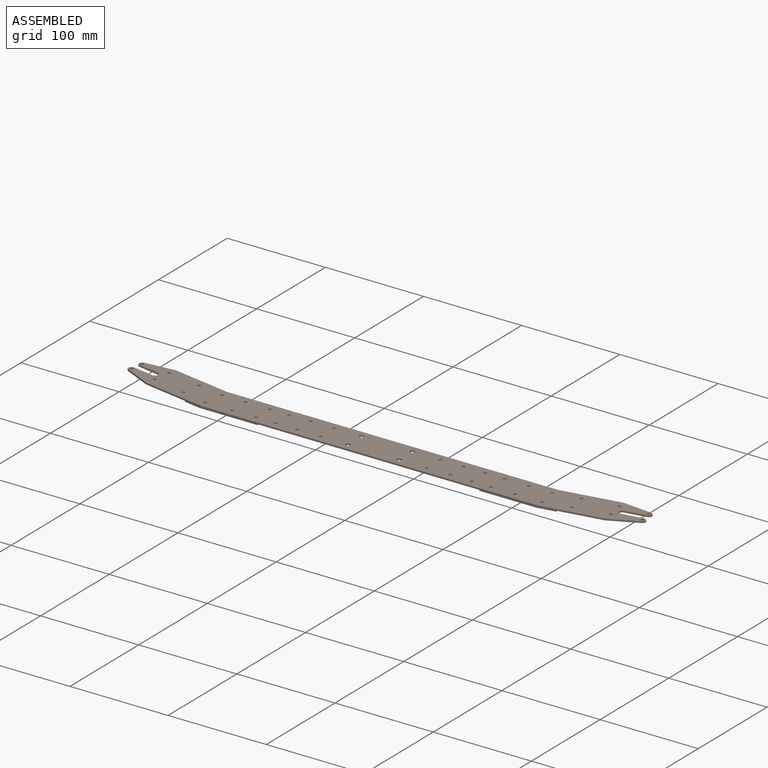
[diagram: assembled view]
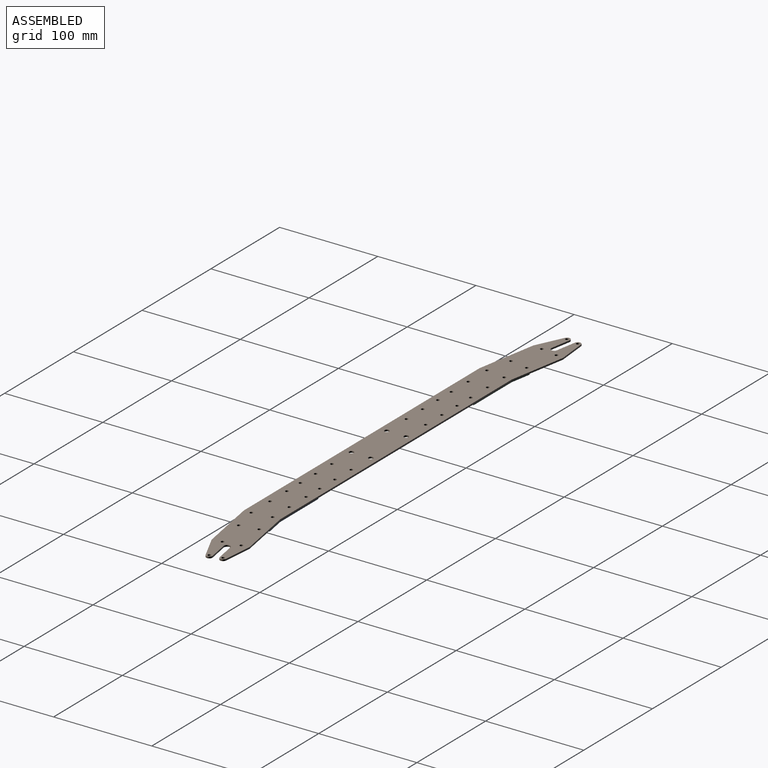
[diagram: assembled view, second angle]
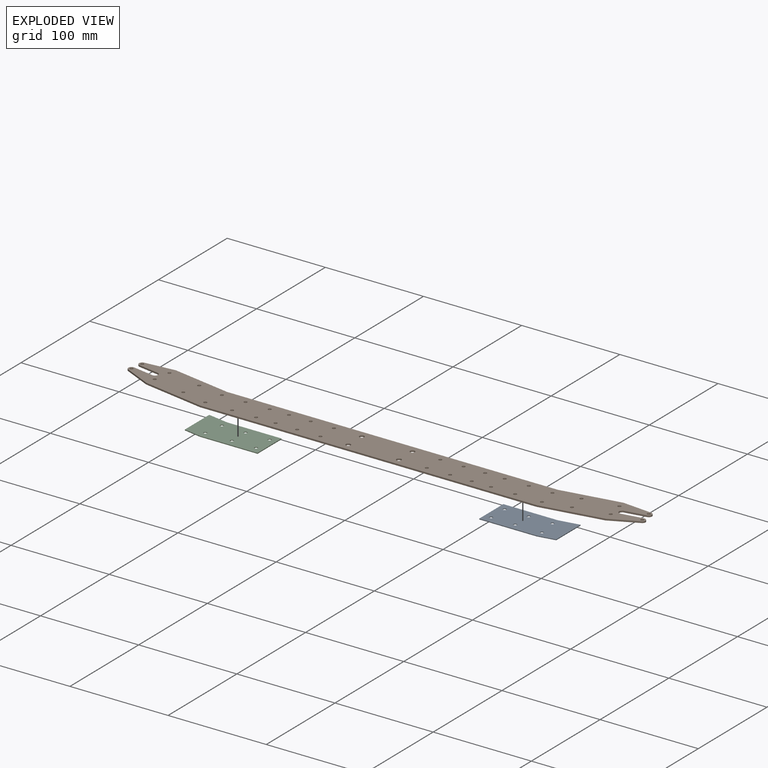
[diagram: exploded view]
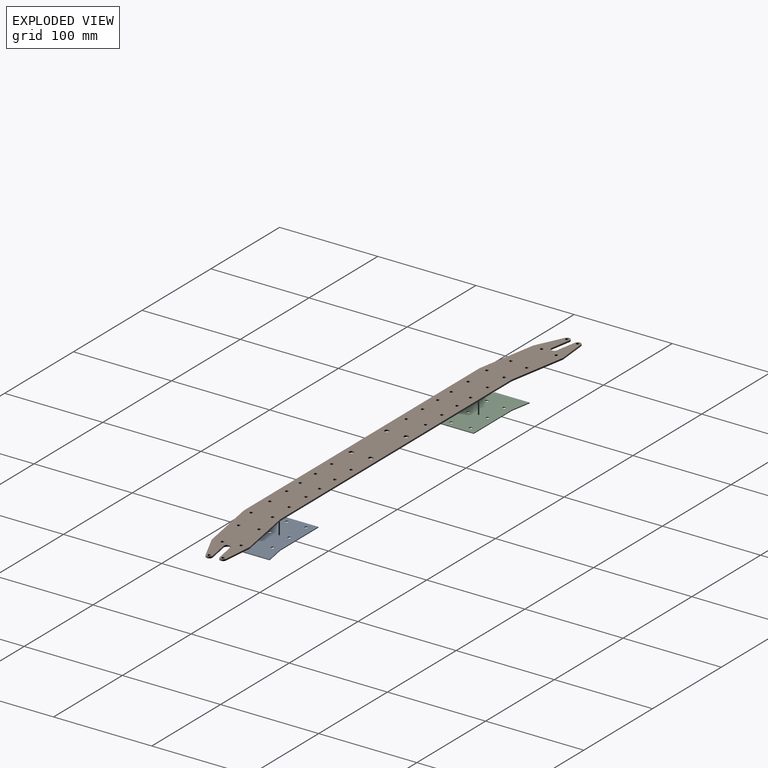
[diagram: exploded view, second angle]
ASSEMBLY  parts=3 mates=4
PART A: 14 faces, bbox 76.2x38.6x0.8 mm
  f0: plane 20.75x3.66mm, normal (-0.17,-0.98,0), area 17.1mm2, adj f3,f4,f5,f13
  f1: plane 58.51x0.81mm, normal (0,1,0), area 47.6mm2, adj f2,f3,f4,f12
  f2: plane 17.69x3.12mm, normal (0.17,0.98,0), area 14.6mm2, adj f1,f3,f4,f13
  f3: plane 76.2x38.58mm, normal (0,0,1), area 2621.4mm2, adj f0,f1,f2,f5,f6,f7,f8,f9
  f4: plane 76.2x38.58mm, normal (0,0,-1), area 2621.4mm2, adj f0,f1,f2,f5,f6,f7,f8,f9
  f5: plane 55.45x0.81mm, normal (0,-1,0), area 45.1mm2, adj f0,f3,f4,f12
  f6: cylinder r=1.63mm len=3.26mm, axis (0,0,1), area 8.3mm2, adj f3,f4
  f7: cylinder r=1.63mm len=3.26mm, axis (0,0,1), area 8.3mm2, adj f3,f4
  f8: cylinder r=1.63mm len=3.26mm, axis (0,0,1), area 8.3mm2, adj f3,f4
  f9: cylinder r=1.63mm len=3.26mm, axis (0,0,1), area 8.3mm2, adj f3,f4
  f10: cylinder r=1.63mm len=3.26mm, axis (0,0,1), area 8.3mm2, adj f3,f4
  f11: cylinder r=1.63mm len=3.26mm, axis (0,0,1), area 8.3mm2, adj f3,f4
  f12: plane 34.93x0.81mm, normal (-1,0,0), area 28.4mm2, adj f1,f3,f4,f5
  f13: plane 35.46x0.81mm, normal (1,0,0), area 28.8mm2, adj f0,f2,f3,f4
PART B: 62 faces, bbox 526.7x45.4x1.6 mm
  f0: cylinder r=3.17mm len=6.29mm, axis (0,0,-1), area 14.6mm2, adj f1,f19,f20,f21
  f1: plane 30.36x2.82mm, normal (-0.09,-1,0), area 48.8mm2, adj f0,f2,f20,f21
  f2: plane 59.53x10.5mm, normal (0.17,-0.98,0), area 96.7mm2, adj f1,f3,f20,f21
  f3: plane 336.79x1.6mm, normal (0,-1,0), area 538.9mm2, adj f2,f4,f20,f21
  f4: plane 59.53x10.5mm, normal (-0.17,-0.98,0), area 96.7mm2, adj f3,f5,f20,f21
  f5: plane 30.36x2.82mm, normal (0.09,-1,0), area 48.8mm2, adj f4,f6,f20,f21
  f6: cylinder r=3.17mm len=6.29mm, axis (0,0,-1), area 14.6mm2, adj f5,f7,f20,f21
  f7: plane 21.11x3.72mm, normal (0.17,0.98,0), area 34.3mm2, adj f6,f8,f20,f21
  f8: cylinder r=3.17mm len=6.3mm, axis (0,0,-1), area 16mm2, adj f7,f9,f20,f21
  f9: plane 21.11x3.72mm, normal (-0.17,-0.98,0), area 34.3mm2, adj f8,f10,f20,f21
  f10: cylinder r=3.17mm len=6.05mm, axis (0,0,-1), area 14.6mm2, adj f9,f11,f20,f21
  f11: plane 27.57x13.04mm, normal (0.43,0.9,0), area 48.8mm2, adj f10,f12,f20,f21
  f12: plane 62.54x11.03mm, normal (0.17,0.98,0), area 101.6mm2, adj f11,f13,f20,f21
  f13: plane 342.9x1.6mm, normal (0,1,0), area 548.7mm2, adj f12,f14,f20,f21
  f14: plane 62.54x11.03mm, normal (-0.17,0.98,0), area 101.6mm2, adj f13,f15,f20,f21
  f15: plane 27.57x13.04mm, normal (-0.43,0.9,0), area 48.8mm2, adj f14,f16,f20,f21
  f16: cylinder r=3.17mm len=6.05mm, axis (0,0,-1), area 14.6mm2, adj f15,f17,f20,f21
  f17: plane 21.11x3.72mm, normal (0.17,-0.98,0), area 34.3mm2, adj f16,f18,f20,f21
  f18: cylinder r=3.17mm len=6.3mm, axis (0,0,-1), area 16mm2, adj f17,f19,f20,f21
  f19: plane 21.11x3.72mm, normal (-0.17,0.98,0), area 34.3mm2, adj f0,f18,f20,f21
  f20: plane 526.74x45.42mm, normal (0,0,1), area 17134mm2, adj f0,f1,f2,f3,f4,f5,f6,f7
  f21: plane 526.74x45.42mm, normal (0,0,-1), area 17134mm2, adj f0,f1,f2,f3,f4,f5,f6,f7
  f22: cylinder r=1.63mm len=3.26mm, axis (0,0,1), area 16.4mm2, adj f20,f21
  f23: cylinder r=1.63mm len=3.26mm, axis (0,0,1), area 16.4mm2, adj f20,f21
  f24: cylinder r=1.63mm len=3.26mm, axis (0,0,1), area 16.4mm2, adj f20,f21
  f25: cylinder r=1.63mm len=3.26mm, axis (0,0,1), area 16.4mm2, adj f20,f21
  f26: cylinder r=1.63mm len=3.26mm, axis (0,0,1), area 16.4mm2, adj f20,f21
  f27: cylinder r=1.63mm len=3.26mm, axis (0,0,1), area 16.4mm2, adj f20,f21
  f28: cylinder r=1.63mm len=3.26mm, axis (0,0,1), area 16.4mm2, adj f20,f21
  f29: cylinder r=1.63mm len=3.26mm, axis (0,0,1), area 16.4mm2, adj f20,f21
  f30: cylinder r=1.63mm len=3.26mm, axis (0,0,1), area 16.4mm2, adj f20,f21
  f31: cylinder r=1.63mm len=3.26mm, axis (0,0,1), area 16.4mm2, adj f20,f21
  f32: cylinder r=1.63mm len=3.26mm, axis (0,0,1), area 16.4mm2, adj f20,f21
  f33: cylinder r=1.63mm len=3.26mm, axis (0,0,1), area 16.4mm2, adj f20,f21
  f34: cylinder r=1.63mm len=3.26mm, axis (0,0,1), area 16.4mm2, adj f20,f21
  f35: cylinder r=1.63mm len=3.26mm, axis (0,0,1), area 16.4mm2, adj f20,f21
  f36: cylinder r=1.63mm len=3.26mm, axis (0,0,1), area 16.4mm2, adj f20,f21
  f37: cylinder r=1.63mm len=3.26mm, axis (0,0,1), area 16.4mm2, adj f20,f21
  f38: cylinder r=1.63mm len=3.26mm, axis (0,0,1), area 16.4mm2, adj f20,f21
  f39: cylinder r=1.63mm len=3.26mm, axis (0,0,1), area 16.4mm2, adj f20,f21
  f40: cylinder r=1.63mm len=3.26mm, axis (0,0,1), area 16.4mm2, adj f20,f21
  f41: cylinder r=1.63mm len=3.26mm, axis (0,0,1), area 16.4mm2, adj f20,f21
  f42: cylinder r=1.63mm len=3.26mm, axis (0,0,1), area 16.4mm2, adj f20,f21
  f43: cylinder r=1.63mm len=3.26mm, axis (0,0,1), area 16.4mm2, adj f20,f21
  f44: cylinder r=1.63mm len=3.26mm, axis (0,0,1), area 16.4mm2, adj f20,f21
  f45: cylinder r=1.63mm len=3.26mm, axis (0,0,1), area 16.4mm2, adj f20,f21
  f46: cylinder r=1.63mm len=3.26mm, axis (0,0,1), area 16.4mm2, adj f20,f21
  f47: cylinder r=1.63mm len=3.26mm, axis (0,0,1), area 16.4mm2, adj f20,f21
  f48: cylinder r=1.63mm len=3.26mm, axis (0,0,1), area 16.4mm2, adj f20,f21
  f49: cylinder r=1.63mm len=3.26mm, axis (0,0,1), area 16.4mm2, adj f20,f21
  f50: cylinder r=1.63mm len=3.26mm, axis (0,0,1), area 16.4mm2, adj f20,f21
  f51: cylinder r=1.63mm len=3.26mm, axis (0,0,1), area 16.4mm2, adj f20,f21
  f52: cylinder r=1.63mm len=3.26mm, axis (0,0,1), area 16.4mm2, adj f20,f21
  f53: cylinder r=1.63mm len=3.26mm, axis (0,0,1), area 16.4mm2, adj f20,f21
  f54: cylinder r=1.63mm len=3.26mm, axis (0,0,1), area 16.4mm2, adj f20,f21
  f55: cylinder r=1.63mm len=3.26mm, axis (0,0,1), area 16.4mm2, adj f20,f21
  f56: cylinder r=1.63mm len=3.26mm, axis (0,0,1), area 16.4mm2, adj f20,f21
  f57: cylinder r=1.63mm len=3.26mm, axis (0,0,1), area 16.4mm2, adj f20,f21
  f58: cylinder r=2.38mm len=4.76mm, axis (0,0,1), area 23.9mm2, adj f20,f21
  f59: cylinder r=2.38mm len=4.76mm, axis (0,0,1), area 23.9mm2, adj f20,f21
  f60: cylinder r=2.38mm len=4.76mm, axis (0,0,1), area 23.9mm2, adj f20,f21
  f61: cylinder r=2.38mm len=4.76mm, axis (0,0,1), area 23.9mm2, adj f20,f21
PART C: 14 faces, bbox 76.2x38.6x0.8 mm
  f0: plane 20.75x3.66mm, normal (0.17,-0.98,0), area 17.1mm2, adj f3,f4,f5,f13
  f1: plane 58.51x0.81mm, normal (0,1,0), area 47.6mm2, adj f2,f3,f4,f12
  f2: plane 17.69x3.12mm, normal (-0.17,0.98,0), area 14.6mm2, adj f1,f3,f4,f13
  f3: plane 76.2x38.58mm, normal (0,0,1), area 2621.4mm2, adj f0,f1,f2,f5,f6,f7,f8,f9
  f4: plane 76.2x38.58mm, normal (0,0,-1), area 2621.4mm2, adj f0,f1,f2,f5,f6,f7,f8,f9
  f5: plane 55.45x0.81mm, normal (0,-1,0), area 45.1mm2, adj f0,f3,f4,f12
  f6: cylinder r=1.63mm len=3.26mm, axis (0,0,1), area 8.3mm2, adj f3,f4
  f7: cylinder r=1.63mm len=3.26mm, axis (0,0,1), area 8.3mm2, adj f3,f4
  f8: cylinder r=1.63mm len=3.26mm, axis (0,0,1), area 8.3mm2, adj f3,f4
  f9: cylinder r=1.63mm len=3.26mm, axis (0,0,1), area 8.3mm2, adj f3,f4
  f10: cylinder r=1.63mm len=3.26mm, axis (0,0,1), area 8.3mm2, adj f3,f4
  f11: cylinder r=1.63mm len=3.26mm, axis (0,0,1), area 8.3mm2, adj f3,f4
  f12: plane 34.93x0.81mm, normal (1,0,0), area 28.4mm2, adj f1,f3,f4,f5
  f13: plane 35.46x0.81mm, normal (-1,0,0), area 28.8mm2, adj f0,f2,f3,f4
PLACE A rot(axis=(1,0,0),180deg) t=(-166.9,4.42,-12.3)mm
PLACE B rot(axis=(1,0,0),180deg) t=(-166.9,4.42,-10.7)mm
PLACE C rot(axis=(1,0,0),180deg) t=(-166.9,4.42,-12.3)mm
MATE slider C.f6 <-> B.f23  axis (0,0,-1) through (-335.29,14.26,-13.12)mm
MATE planar C.f4 <-> B.f20  axis (0,0,1) through (-356.04,-9.92,-12.3)mm
MATE slider A.f6 <-> B.f48  axis (0,0,-1) through (1.5,14.26,-12.71)mm
MATE planar A.f4 <-> B.f20  axis (0,0,1) through (-15.62,4.86,-12.3)mm
